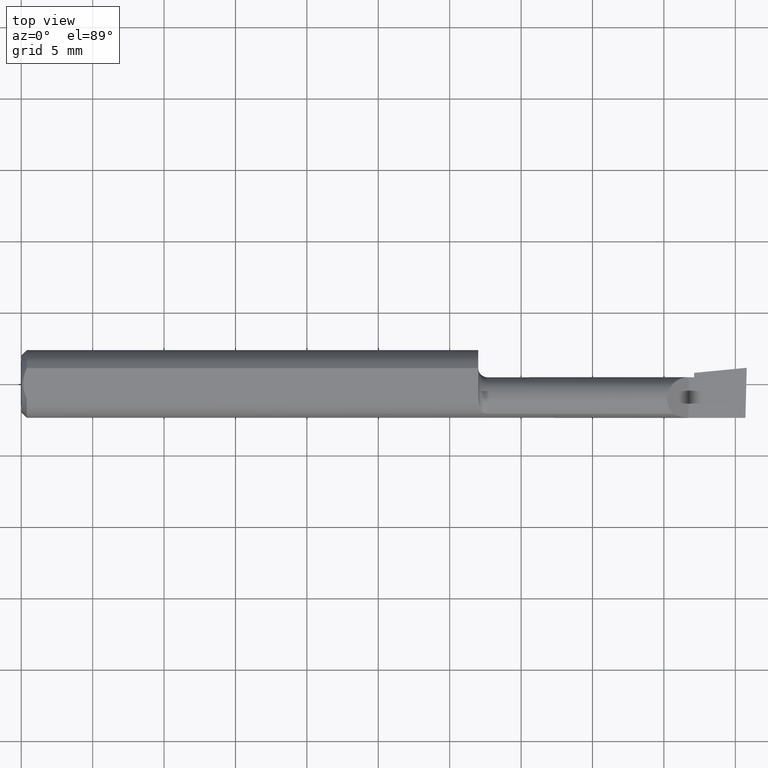
[diagram: clean part render]
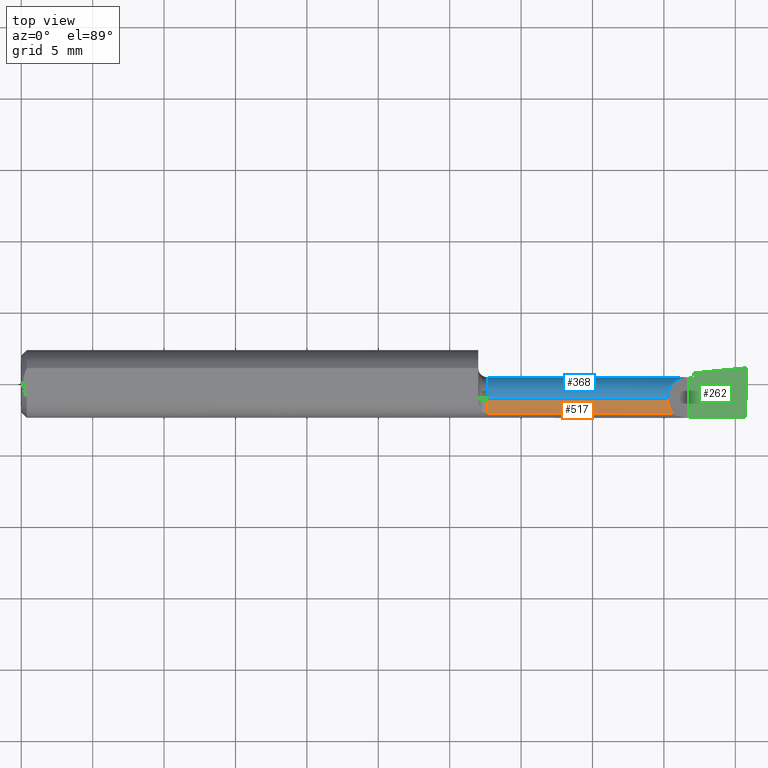
[diagram: same view with three faces highlighted in distinct colors, each labeled with its STEP entity id]
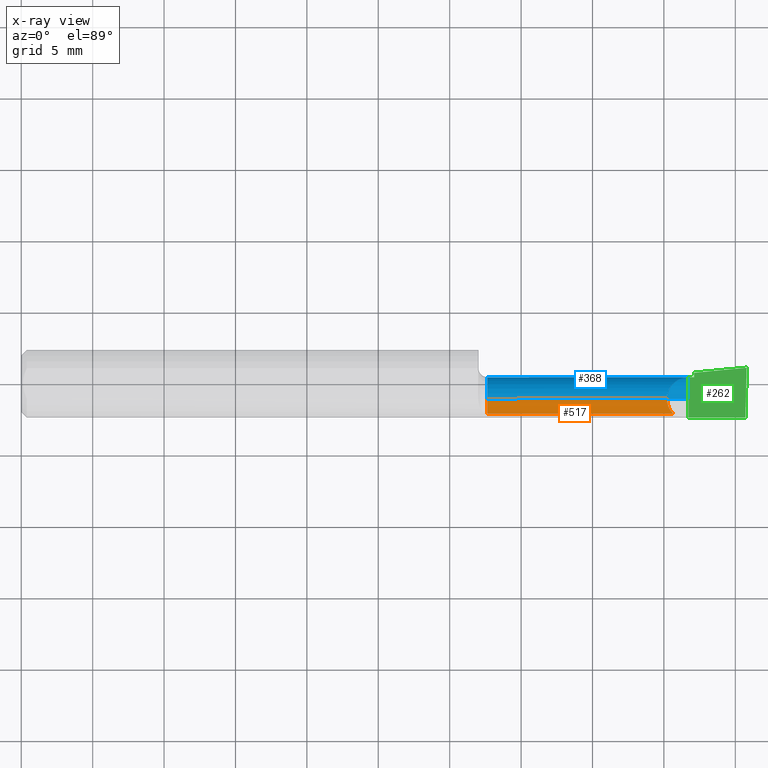
[diagram: x-ray of the same camera — body ghosted, the three highlighted faces saturated]
A machine part, top view with three faces highlighted in distinct colors.
The next image is the same camera in x-ray (body ghosted, the three faces saturated) — at least one of them is partly hidden behind the body in this view.
Their STEP definitions:

[orange] entity #517 — the highlighted cylindrical surface (edge-blend (fillet) strip) has radius 1.5215 mm, axis along (-1, -0, -0).
#4 = VERTEX_POINT ( 'NONE', #127 ) ;
#7 = CARTESIAN_POINT ( 'NONE',  ( 1.780099999999999349, -0.04150000000000000216, 0.05989999999999997410 ) ) ;
#12 = EDGE_CURVE ( 'NONE', #49, #389, #305, .T. ) ;
#16 = FACE_OUTER_BOUND ( 'NONE', #644, .T. ) ;
#49 = VERTEX_POINT ( 'NONE', #311 ) ;
#83 = CARTESIAN_POINT ( 'NONE',  ( 1.796877448822106649, -0.08307469879518082634, 0.04312255117789281361 ) ) ;
#121 = DIRECTION ( 'NONE',  ( 1.000000000000000000, 0.0000000000000000000, 0.0000000000000000000 ) ) ;
#127 = CARTESIAN_POINT ( 'NONE',  ( 1.284999999999999920, -0.04150000000000000216, 0.05989999999999994634 ) ) ;
#167 = VECTOR ( 'NONE', #479, 39.37007874015748143 ) ;
#184 = CARTESIAN_POINT ( 'NONE',  ( 1.284999999999999920, -0.04150000000000000216, 0.0000000000000000000 ) ) ;
#234 = CARTESIAN_POINT ( 'NONE',  ( 1.780099999999999349, -0.04150000000000000216, 0.05989999999999997410 ) ) ;
#237 = ORIENTED_EDGE ( 'NONE', *, *, #12, .T. ) ;
#244 = DIRECTION ( 'NONE',  ( -1.000000000000000000, -0.0000000000000000000, -0.0000000000000000000 ) ) ;
#248 = DIRECTION ( 'NONE',  ( 0.0000000000000000000, 0.0000000000000000000, 1.000000000000000000 ) ) ;
#280 = ORIENTED_EDGE ( 'NONE', *, *, #364, .F. ) ;
#305 = LINE ( 'NONE', #422, #426 ) ;
#311 = CARTESIAN_POINT ( 'NONE',  ( 1.284999999999999920, -0.08307469879518063205, 0.04312255117789297321 ) ) ;
#317 = EDGE_CURVE ( 'NONE', #389, #629, #333, .T. ) ;
#333 =( BOUNDED_CURVE ( )  B_SPLINE_CURVE ( 3, ( #340, #594, #487, #234 ),
 .UNSPECIFIED., .F., .F. ) 
 B_SPLINE_CURVE_WITH_KNOTS ( ( 4, 4 ),
 ( 5.516060229395656656, 6.283185307179586232 ),
 .UNSPECIFIED. ) 
 CURVE ( )  GEOMETRIC_REPRESENTATION_ITEM ( )  RATIONAL_B_SPLINE_CURVE ( ( 1.000000000000000000, 0.9515582177473687064, 0.9515582177473687064, 1.000000000000000000 ) ) 
 REPRESENTATION_ITEM ( '' )  );
#338 = LINE ( 'NONE', #637, #167 ) ;
#340 = CARTESIAN_POINT ( 'NONE',  ( 1.796877448822106649, -0.08307469879518082634, 0.04312255117789281361 ) ) ;
#346 = AXIS2_PLACEMENT_3D ( 'NONE', #659, #244, #248 ) ;
#364 = EDGE_CURVE ( 'NONE', #49, #4, #568, .T. ) ;
#374 = DIRECTION ( 'NONE',  ( 0.0000000000000000000, 0.0000000000000000000, 1.000000000000000000 ) ) ;
#389 = VERTEX_POINT ( 'NONE', #83 ) ;
#404 = AXIS2_PLACEMENT_3D ( 'NONE', #184, #430, #374 ) ;
#422 = CARTESIAN_POINT ( 'NONE',  ( 1.569999999999999840, -0.08307469879518077083, 0.04312255117789288994 ) ) ;
#426 = VECTOR ( 'NONE', #121, 39.37007874015748143 ) ;
#430 = DIRECTION ( 'NONE',  ( -1.000000000000000000, -0.0000000000000000000, -0.0000000000000000000 ) ) ;
#448 = CYLINDRICAL_SURFACE ( 'NONE', #346, 0.05989999999999997410 ) ;
#479 = DIRECTION ( 'NONE',  ( -1.000000000000000000, -0.0000000000000000000, -0.0000000000000000000 ) ) ;
#487 = CARTESIAN_POINT ( 'NONE',  ( 1.780099999999999127, -0.05720488466914008113, 0.05989999999999996022 ) ) ;
#517 = ADVANCED_FACE ( 'NONE', ( #16 ), #448, .T. ) ;
#546 = ORIENTED_EDGE ( 'NONE', *, *, #567, .T. ) ;
#547 = ORIENTED_EDGE ( 'NONE', *, *, #317, .T. ) ;
#567 = EDGE_CURVE ( 'NONE', #629, #4, #338, .T. ) ;
#568 = CIRCLE ( 'NONE', #404, 0.05989999999999993940 ) ;
#594 = CARTESIAN_POINT ( 'NONE',  ( 1.785977184218891400, -0.07176861043311237587, 0.05402281578110738197 ) ) ;
#629 = VERTEX_POINT ( 'NONE', #7 ) ;
#637 = CARTESIAN_POINT ( 'NONE',  ( 0.0000000000000000000, -0.04150000000000000216, 0.05989999999999997410 ) ) ;
#644 = EDGE_LOOP ( 'NONE', ( #547, #546, #280, #237 ) ) ;
#659 = CARTESIAN_POINT ( 'NONE',  ( 0.0000000000000000000, -0.04150000000000000216, 0.0000000000000000000 ) ) ;

[blue] entity #368 — the highlighted cylindrical surface (edge-blend (fillet) strip) has radius 1.5215 mm, axis along (-1, -0, -0).
#4 = VERTEX_POINT ( 'NONE', #127 ) ;
#7 = CARTESIAN_POINT ( 'NONE',  ( 1.780099999999999349, -0.04150000000000000216, 0.05989999999999997410 ) ) ;
#15 = ORIENTED_EDGE ( 'NONE', *, *, #298, .T. ) ;
#24 = CARTESIAN_POINT ( 'NONE',  ( 1.284999999999999920, -0.04149999999999999523, -0.05989999999999994634 ) ) ;
#30 = CARTESIAN_POINT ( 'NONE',  ( 1.840000000000000080, 0.01839999999999989908, 1.959434878635762025E-17 ) ) ;
#33 = EDGE_CURVE ( 'NONE', #4, #37, #621, .T. ) ;
#37 = VERTEX_POINT ( 'NONE', #24 ) ;
#40 = EDGE_CURVE ( 'NONE', #275, #218, #147, .T. ) ;
#59 = VECTOR ( 'NONE', #243, 39.37007874015748143 ) ;
#63 = CARTESIAN_POINT ( 'NONE',  ( 1.284999999999999920, -0.04150000000000000216, 0.0000000000000000000 ) ) ;
#67 = AXIS2_PLACEMENT_3D ( 'NONE', #258, #116, #367 ) ;
#86 = CARTESIAN_POINT ( 'NONE',  ( 1.854999999999999982, 0.01839999999999999969, 1.030335658007946637E-15 ) ) ;
#92 = CARTESIAN_POINT ( 'NONE',  ( 1.840000000000000080, 0.01839999999999989908, 1.959434878635762025E-17 ) ) ;
#100 = DIRECTION ( 'NONE',  ( 0.0000000000000000000, 0.0000000000000000000, 1.000000000000000000 ) ) ;
#116 = DIRECTION ( 'NONE',  ( -1.000000000000000000, -0.0000000000000000000, -0.0000000000000000000 ) ) ;
#127 = CARTESIAN_POINT ( 'NONE',  ( 1.284999999999999920, -0.04150000000000000216, 0.05989999999999994634 ) ) ;
#132 = CARTESIAN_POINT ( 'NONE',  ( 0.0000000000000000000, -0.04150000000000000216, 0.0000000000000000000 ) ) ;
#134 = CARTESIAN_POINT ( 'NONE',  ( 1.854999999999999982, -0.04150000000000000216, -0.05990000000000000185 ) ) ;
#145 = CARTESIAN_POINT ( 'NONE',  ( 1.804911392386147506, 0.01839999999999996499, 0.03508860761385158150 ) ) ;
#147 = CIRCLE ( 'NONE', #67, 0.05990000000000000185 ) ;
#167 = VECTOR ( 'NONE', #479, 39.37007874015748143 ) ;
#170 = ORIENTED_EDGE ( 'NONE', *, *, #40, .T. ) ;
#176 = AXIS2_PLACEMENT_3D ( 'NONE', #63, #349, #100 ) ;
#178 = CYLINDRICAL_SURFACE ( 'NONE', #302, 0.05989999999999997410 ) ;
#187 = ORIENTED_EDGE ( 'NONE', *, *, #33, .F. ) ;
#213 = ORIENTED_EDGE ( 'NONE', *, *, #476, .T. ) ;
#218 = VERTEX_POINT ( 'NONE', #134 ) ;
#227 = DIRECTION ( 'NONE',  ( -1.000000000000000000, -0.0000000000000000000, -0.0000000000000000000 ) ) ;
#240 =( BOUNDED_CURVE ( )  B_SPLINE_CURVE ( 3, ( #390, #650, #145, #92 ),
 .UNSPECIFIED., .F., .T. ) 
 B_SPLINE_CURVE_WITH_KNOTS ( ( 4, 4 ),
 ( 0.0000000000000000000, 1.570796326794896558 ),
 .UNSPECIFIED. ) 
 CURVE ( )  GEOMETRIC_REPRESENTATION_ITEM ( )  RATIONAL_B_SPLINE_CURVE ( ( 1.000000000000000000, 0.8047378541243649375, 0.8047378541243649375, 1.000000000000000000 ) ) 
 REPRESENTATION_ITEM ( '' )  );
#243 = DIRECTION ( 'NONE',  ( 1.000000000000000000, 0.0000000000000000000, 0.0000000000000000000 ) ) ;
#253 = DIRECTION ( 'NONE',  ( -1.000000000000000000, -0.0000000000000000000, -0.0000000000000000000 ) ) ;
#256 = LINE ( 'NONE', #455, #59 ) ;
#258 = CARTESIAN_POINT ( 'NONE',  ( 1.854999999999999982, -0.04150000000000000216, 0.0000000000000000000 ) ) ;
#261 = LINE ( 'NONE', #297, #603 ) ;
#268 = DIRECTION ( 'NONE',  ( 0.0000000000000000000, 0.0000000000000000000, 1.000000000000000000 ) ) ;
#275 = VERTEX_POINT ( 'NONE', #86 ) ;
#297 = CARTESIAN_POINT ( 'NONE',  ( 0.0000000000000000000, -0.04149999999999999523, -0.05989999999999997410 ) ) ;
#298 = EDGE_CURVE ( 'NONE', #629, #376, #240, .T. ) ;
#302 = AXIS2_PLACEMENT_3D ( 'NONE', #132, #227, #268 ) ;
#338 = LINE ( 'NONE', #637, #167 ) ;
#349 = DIRECTION ( 'NONE',  ( -1.000000000000000000, -0.0000000000000000000, -0.0000000000000000000 ) ) ;
#366 = ORIENTED_EDGE ( 'NONE', *, *, #600, .T. ) ;
#367 = DIRECTION ( 'NONE',  ( 0.0000000000000000000, 0.0000000000000000000, 1.000000000000000000 ) ) ;
#368 = ADVANCED_FACE ( 'NONE', ( #520 ), #178, .T. ) ;
#376 = VERTEX_POINT ( 'NONE', #30 ) ;
#390 = CARTESIAN_POINT ( 'NONE',  ( 1.780099999999999349, -0.04150000000000000216, 0.05989999999999997410 ) ) ;
#455 = CARTESIAN_POINT ( 'NONE',  ( 5.659797890829555466E-31, 0.01839999999999995806, 1.030335658007946046E-15 ) ) ;
#476 = EDGE_CURVE ( 'NONE', #218, #37, #261, .T. ) ;
#479 = DIRECTION ( 'NONE',  ( -1.000000000000000000, -0.0000000000000000000, -0.0000000000000000000 ) ) ;
#504 = ORIENTED_EDGE ( 'NONE', *, *, #567, .F. ) ;
#520 = FACE_OUTER_BOUND ( 'NONE', #588, .T. ) ;
#567 = EDGE_CURVE ( 'NONE', #629, #4, #338, .T. ) ;
#588 = EDGE_LOOP ( 'NONE', ( #170, #213, #187, #504, #15, #366 ) ) ;
#600 = EDGE_CURVE ( 'NONE', #376, #275, #256, .T. ) ;
#603 = VECTOR ( 'NONE', #253, 39.37007874015748143 ) ;
#621 = CIRCLE ( 'NONE', #176, 0.05989999999999993940 ) ;
#629 = VERTEX_POINT ( 'NONE', #7 ) ;
#637 = CARTESIAN_POINT ( 'NONE',  ( 0.0000000000000000000, -0.04150000000000000216, 0.05989999999999997410 ) ) ;
#650 = CARTESIAN_POINT ( 'NONE',  ( 1.780099999999999349, -0.006411392386148411990, 0.05989999999999994634 ) ) ;

[green] entity #262 — the highlighted planar face has unit normal (-0, 0, -1).
#2 = CARTESIAN_POINT ( 'NONE',  ( 1.854999999999999982, 0.03043808801135922115, 1.030335937757294514E-15 ) ) ;
#8 = CARTESIAN_POINT ( 'NONE',  ( 1.107894390816139163, -0.04150000000000000216, 4.217516215662293437E-16 ) ) ;
#9 = DIRECTION ( 'NONE',  ( 0.9953961983671787417, 0.09584575252022466130, -5.467869873542577569E-16 ) ) ;
#22 = VERTEX_POINT ( 'NONE', #260 ) ;
#25 = CARTESIAN_POINT ( 'NONE',  ( 5.659797890829555466E-31, -0.09359999999999998876, 1.030335658007946046E-15 ) ) ;
#27 = ORIENTED_EDGE ( 'NONE', *, *, #449, .F. ) ;
#30 = CARTESIAN_POINT ( 'NONE',  ( 1.840000000000000080, 0.01839999999999989908, 1.959434878635762025E-17 ) ) ;
#39 = CARTESIAN_POINT ( 'NONE',  ( 1.854999999999999982, -0.2500000000000000555, 1.135460985248596835E-17 ) ) ;
#53 = CARTESIAN_POINT ( 'NONE',  ( 1.840000000000000080, -0.2500000000000000555, 1.959434878635762025E-17 ) ) ;
#59 = VECTOR ( 'NONE', #243, 39.37007874015748143 ) ;
#69 = EDGE_CURVE ( 'NONE', #320, #312, #511, .T. ) ;
#86 = CARTESIAN_POINT ( 'NONE',  ( 1.854999999999999982, 0.01839999999999999969, 1.030335658007946637E-15 ) ) ;
#101 = DIRECTION ( 'NONE',  ( 0.02617694830786378504, 0.9996573249755575929, -1.459184416195593542E-17 ) ) ;
#107 = LINE ( 'NONE', #25, #359 ) ;
#118 = VECTOR ( 'NONE', #9, 39.37007874015748143 ) ;
#144 = CARTESIAN_POINT ( 'NONE',  ( 1.996386342823452065, -0.09360000000000009979, -6.634435288474567089E-17 ) ) ;
#158 = EDGE_LOOP ( 'NONE', ( #572, #173, #626, #239, #452, #27 ) ) ;
#173 = ORIENTED_EDGE ( 'NONE', *, *, #69, .T. ) ;
#183 = LINE ( 'NONE', #53, #580 ) ;
#194 = LINE ( 'NONE', #39, #578 ) ;
#235 = FACE_OUTER_BOUND ( 'NONE', #158, .T. ) ;
#239 = ORIENTED_EDGE ( 'NONE', *, *, #264, .F. ) ;
#243 = DIRECTION ( 'NONE',  ( 1.000000000000000000, 0.0000000000000000000, 0.0000000000000000000 ) ) ;
#256 = LINE ( 'NONE', #455, #59 ) ;
#260 = CARTESIAN_POINT ( 'NONE',  ( 1.840000000000000080, -0.09360000000000005815, 1.959434878635762025E-17 ) ) ;
#262 = ADVANCED_FACE ( 'NONE', ( #235 ), #337, .F. ) ;
#264 = EDGE_CURVE ( 'NONE', #275, #495, #194, .T. ) ;
#275 = VERTEX_POINT ( 'NONE', #86 ) ;
#287 = CARTESIAN_POINT ( 'NONE',  ( 2.000000000000000000, -0.2500000000000000555, -6.829619984160658046E-17 ) ) ;
#289 = LINE ( 'NONE', #8, #118 ) ;
#312 = VERTEX_POINT ( 'NONE', #441 ) ;
#320 = VERTEX_POINT ( 'NONE', #144 ) ;
#337 = PLANE ( 'NONE',  #391 ) ;
#353 = CARTESIAN_POINT ( 'NONE',  ( 1.992296147241039872, -0.2497982675158734178, -6.406435080701882457E-17 ) ) ;
#359 = VECTOR ( 'NONE', #579, 39.37007874015748143 ) ;
#376 = VERTEX_POINT ( 'NONE', #30 ) ;
#391 = AXIS2_PLACEMENT_3D ( 'NONE', #287, #485, #443 ) ;
#392 = EDGE_CURVE ( 'NONE', #320, #22, #107, .T. ) ;
#409 = DIRECTION ( 'NONE',  ( -0.0000000000000000000, 1.000000000000000000, -0.0000000000000000000 ) ) ;
#441 = CARTESIAN_POINT ( 'NONE',  ( 2.000000000000003997, 0.04440000000001220748, 3.860869547295821778E-14 ) ) ;
#442 = VECTOR ( 'NONE', #101, 39.37007874015748854 ) ;
#443 = DIRECTION ( 'NONE',  ( -1.000000000000000000, 0.0000000000000000000, 5.493159289247764363E-16 ) ) ;
#449 = EDGE_CURVE ( 'NONE', #22, #376, #183, .T. ) ;
#452 = ORIENTED_EDGE ( 'NONE', *, *, #600, .F. ) ;
#455 = CARTESIAN_POINT ( 'NONE',  ( 5.659797890829555466E-31, 0.01839999999999995806, 1.030335658007946046E-15 ) ) ;
#485 = DIRECTION ( 'NONE',  ( -5.493159289247764363E-16, 0.0000000000000000000, -1.000000000000000000 ) ) ;
#495 = VERTEX_POINT ( 'NONE', #2 ) ;
#511 = LINE ( 'NONE', #353, #442 ) ;
#549 = EDGE_CURVE ( 'NONE', #495, #312, #289, .T. ) ;
#572 = ORIENTED_EDGE ( 'NONE', *, *, #392, .F. ) ;
#578 = VECTOR ( 'NONE', #598, 39.37007874015748143 ) ;
#579 = DIRECTION ( 'NONE',  ( -1.000000000000000000, -0.0000000000000000000, -0.0000000000000000000 ) ) ;
#580 = VECTOR ( 'NONE', #409, 39.37007874015748143 ) ;
#598 = DIRECTION ( 'NONE',  ( 0.0000000000000000000, 1.000000000000000000, 0.0000000000000000000 ) ) ;
#600 = EDGE_CURVE ( 'NONE', #376, #275, #256, .T. ) ;
#626 = ORIENTED_EDGE ( 'NONE', *, *, #549, .F. ) ;